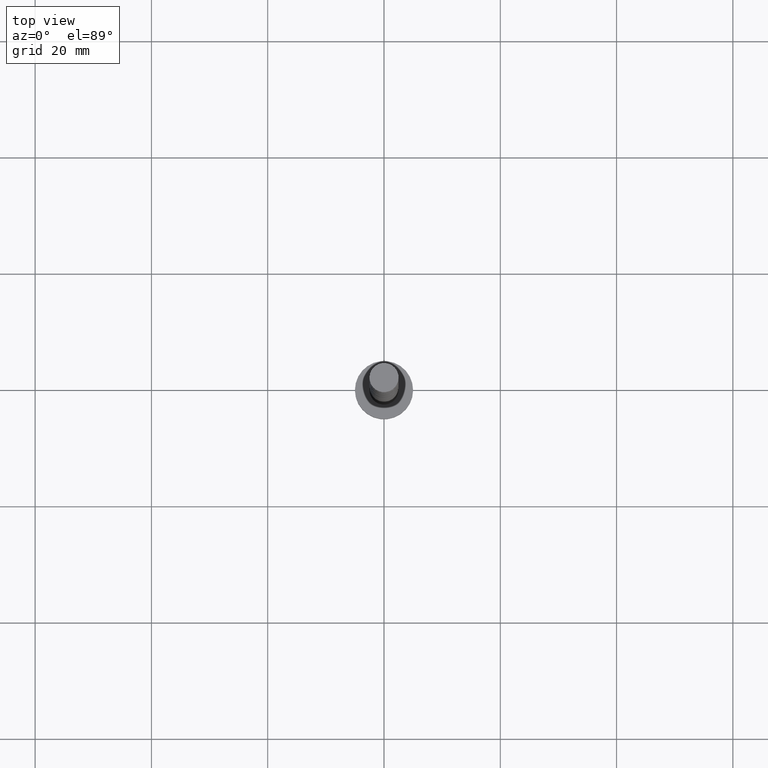
[diagram: clean part render]
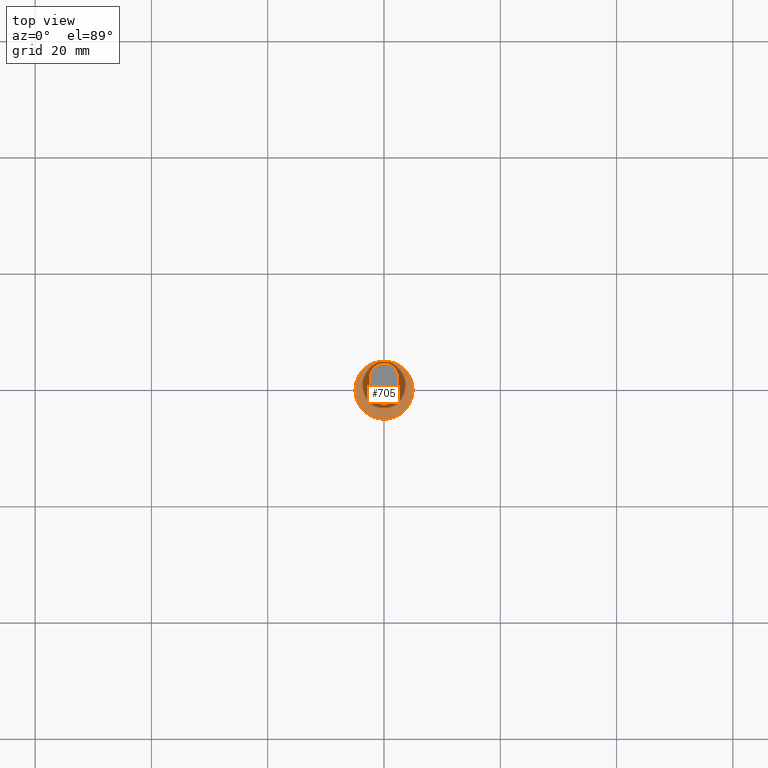
[diagram: same view with one face highlighted and labeled with its STEP entity id]
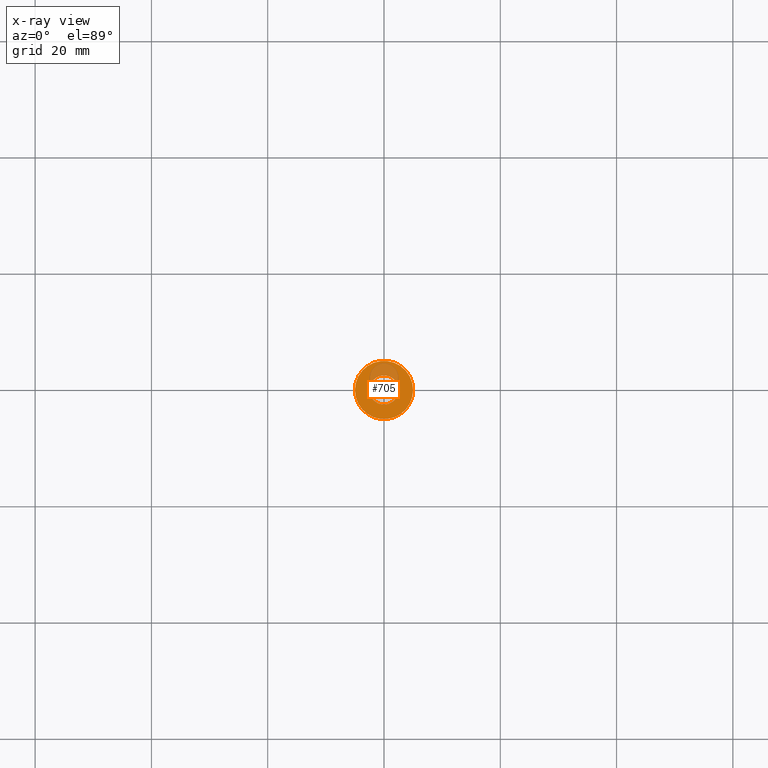
[diagram: x-ray of the same camera — body ghosted, the highlighted face saturated]
A machine part, top view. The second image highlights one B-rep face of the part: STEP entity #705.
The next image is the same camera in x-ray: the body ghosted, the highlighted face saturated — about 18% of this face is hidden behind the body in this view.
In plain terms, the highlighted planar face has unit normal (0, 0, 1).
Its self-contained STEP definition (entity closure, byte-faithful):
#17 = CIRCLE ( 'NONE', #1162, 5.000000000000000000 ) ;
#109 = DIRECTION ( 'NONE',  ( 1.000000000000000000, 0.000000000000000000, 0.000000000000000000 ) ) ;
#217 = CARTESIAN_POINT ( 'NONE',  ( 0.000000000000000000, 0.000000000000000000, 3.000000000000000000 ) ) ;
#242 = CARTESIAN_POINT ( 'NONE',  ( 0.000000000000000000, 0.000000000000000000, 3.000000000000000000 ) ) ;
#313 = ORIENTED_EDGE ( 'NONE', *, *, #1534, .F. ) ;
#423 = VERTEX_POINT ( 'NONE', #1416 ) ;
#569 = FACE_OUTER_BOUND ( 'NONE', #1312, .T. ) ;
#575 = CIRCLE ( 'NONE', #1238, 2.500000000000000000 ) ;
#614 = EDGE_LOOP ( 'NONE', ( #313, #1237 ) ) ;
#629 = DIRECTION ( 'NONE',  ( 0.000000000000000000, 0.000000000000000000, 1.000000000000000000 ) ) ;
#645 = DIRECTION ( 'NONE',  ( 1.000000000000000000, 0.000000000000000000, 0.000000000000000000 ) ) ;
#705 = ADVANCED_FACE ( 'NONE', ( #1178, #569 ), #1452, .T. ) ;
#721 = CARTESIAN_POINT ( 'NONE',  ( 0.000000000000000000, 0.000000000000000000, 3.000000000000000000 ) ) ;
#747 = CARTESIAN_POINT ( 'NONE',  ( -2.500000000000000000, 0.000000000000000000, 3.000000000000000000 ) ) ;
#749 = EDGE_CURVE ( 'NONE', #423, #1439, #751, .T. ) ;
#751 = CIRCLE ( 'NONE', #805, 2.500000000000000000 ) ;
#805 = AXIS2_PLACEMENT_3D ( 'NONE', #217, #1074, #1444 ) ;
#834 = ORIENTED_EDGE ( 'NONE', *, *, #1348, .T. ) ;
#862 = CARTESIAN_POINT ( 'NONE',  ( -5.000000000000000000, 0.000000000000000000, 3.000000000000000000 ) ) ;
#957 = CIRCLE ( 'NONE', #1366, 5.000000000000000000 ) ;
#994 = CARTESIAN_POINT ( 'NONE',  ( 0.000000000000000000, 0.000000000000000000, 3.000000000000000000 ) ) ;
#1057 = DIRECTION ( 'NONE',  ( 0.000000000000000000, 0.000000000000000000, 1.000000000000000000 ) ) ;
#1074 = DIRECTION ( 'NONE',  ( 0.000000000000000000, 0.000000000000000000, 1.000000000000000000 ) ) ;
#1111 = ORIENTED_EDGE ( 'NONE', *, *, #1228, .T. ) ;
#1162 = AXIS2_PLACEMENT_3D ( 'NONE', #1372, #1243, #645 ) ;
#1178 = FACE_BOUND ( 'NONE', #614, .T. ) ;
#1186 = AXIS2_PLACEMENT_3D ( 'NONE', #721, #1057, #1207 ) ;
#1207 = DIRECTION ( 'NONE',  ( 1.000000000000000000, 0.000000000000000000, -0.000000000000000000 ) ) ;
#1211 = DIRECTION ( 'NONE',  ( 0.000000000000000000, 0.000000000000000000, 1.000000000000000000 ) ) ;
#1228 = EDGE_CURVE ( 'NONE', #1484, #1295, #957, .T. ) ;
#1235 = DIRECTION ( 'NONE',  ( 1.000000000000000000, 0.000000000000000000, 0.000000000000000000 ) ) ;
#1237 = ORIENTED_EDGE ( 'NONE', *, *, #749, .F. ) ;
#1238 = AXIS2_PLACEMENT_3D ( 'NONE', #994, #629, #1235 ) ;
#1243 = DIRECTION ( 'NONE',  ( 0.000000000000000000, 0.000000000000000000, 1.000000000000000000 ) ) ;
#1252 = CARTESIAN_POINT ( 'NONE',  ( 5.000000000000000000, 6.123233995736766282E-16, 3.000000000000000000 ) ) ;
#1295 = VERTEX_POINT ( 'NONE', #862 ) ;
#1312 = EDGE_LOOP ( 'NONE', ( #834, #1111 ) ) ;
#1348 = EDGE_CURVE ( 'NONE', #1295, #1484, #17, .T. ) ;
#1366 = AXIS2_PLACEMENT_3D ( 'NONE', #242, #1211, #109 ) ;
#1372 = CARTESIAN_POINT ( 'NONE',  ( 0.000000000000000000, 0.000000000000000000, 3.000000000000000000 ) ) ;
#1416 = CARTESIAN_POINT ( 'NONE',  ( 2.500000000000000000, 3.061616997868382648E-16, 3.000000000000000000 ) ) ;
#1439 = VERTEX_POINT ( 'NONE', #747 ) ;
#1444 = DIRECTION ( 'NONE',  ( 1.000000000000000000, 0.000000000000000000, 0.000000000000000000 ) ) ;
#1452 = PLANE ( 'NONE',  #1186 ) ;
#1484 = VERTEX_POINT ( 'NONE', #1252 ) ;
#1534 = EDGE_CURVE ( 'NONE', #1439, #423, #575, .T. ) ;